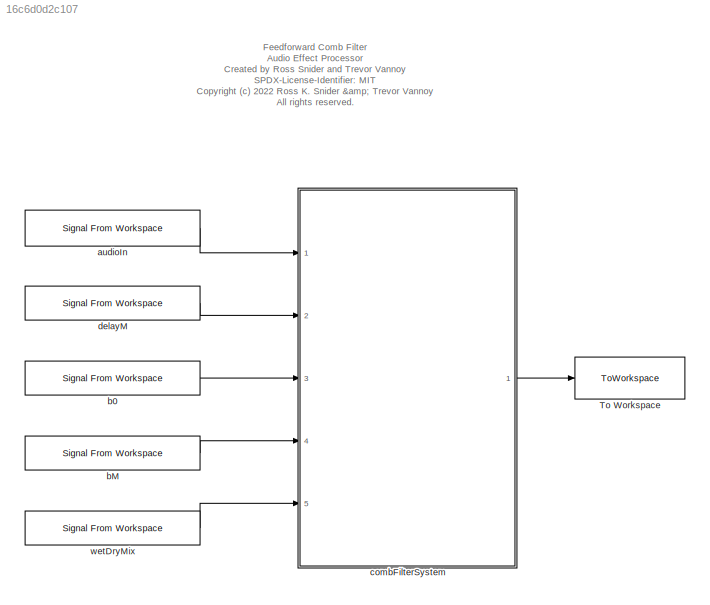
MODEL slx_16c6d0d2c107
KIND model
CONFIG AbsTol = auto
CONFIG EnableMultiTasking = off
CONFIG FixedStep = auto
CONFIG InitFcn = initCallback
CONFIG MaxStep = auto
CONFIG MinStep = auto
CONFIG PostLoadFcn = postLoadCallback
CONFIG RelTol = 1e-3
CONFIG SampleTimeConstraint = Unconstrained
CONFIG SolverName = FixedStepDiscrete
CONFIG StartTime = 0.0
CONFIG StopFcn = stopCallback
CONFIG StopTime = simParams.stopTime
BLOCK [ToWorkspace] To Workspace
  FixptAsFi = on
  MaxDataPoints = inf
  Ports = [1]
  SampleTime = -1
  Save2DSignal = 2-D array (concatenate along first dimension)
  VariableName = audioOut
BLOCK [Reference] audioIn  REF=dspsrcs4/Signal From
Workspace
  Ports = [0, 1]
  SourceBlock = dspsrcs4/Signal From\nWorkspace
  SourceProductBaseCode = DS
  SourceType = Signal From Workspace
BLOCK [Reference] b0  REF=dspsrcs4/Signal From
Workspace
  Ports = [0, 1]
  SourceBlock = dspsrcs4/Signal From\nWorkspace
  SourceProductBaseCode = DS
  SourceType = Signal From Workspace
BLOCK [Reference] bM  REF=dspsrcs4/Signal From
Workspace
  Ports = [0, 1]
  SourceBlock = dspsrcs4/Signal From\nWorkspace
  SourceProductBaseCode = DS
  SourceType = Signal From Workspace
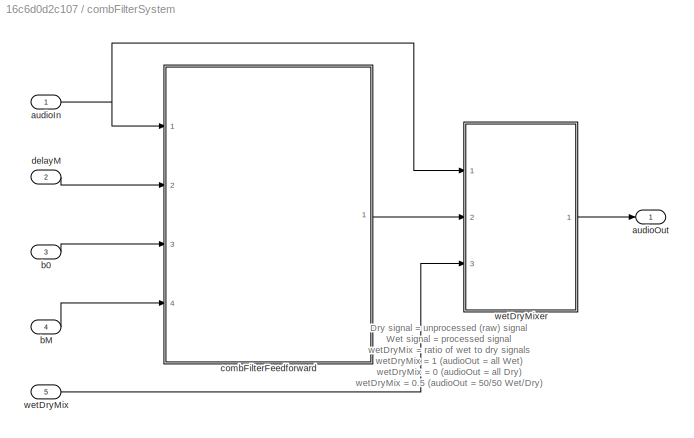
BLOCK [SubSystem] combFilterSystem
  Ports = [5, 1]
  RequestExecContextInheritance = off
  TreatAsAtomicUnit = on
BLOCK [Inport] combFilterSystem/audioIn
BLOCK [Outport] combFilterSystem/audioOut
BLOCK [Inport] combFilterSystem/b0
  Port = 3
BLOCK [Inport] combFilterSystem/bM
  Port = 4
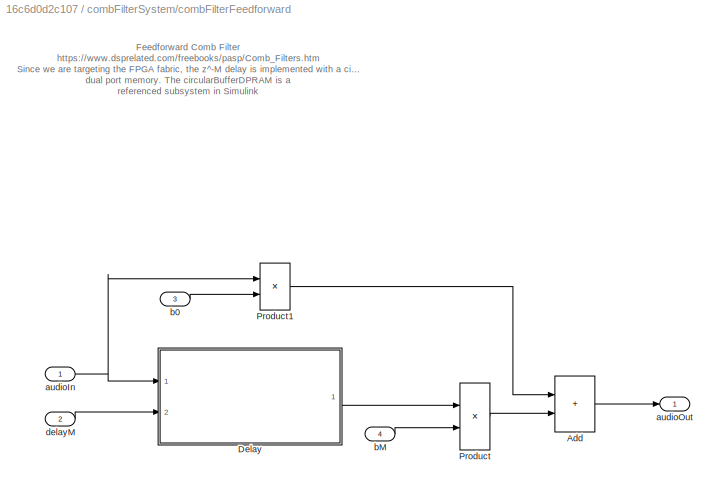
BLOCK [SubSystem] combFilterSystem/combFilterFeedforward
  Ports = [4, 1]
  RequestExecContextInheritance = off
BLOCK [Sum] combFilterSystem/combFilterFeedforward/Add
  IconShape = rectangular
  OutDataTypeStr = fixdt(1, modelParams.audio.wordLength, modelParams.audio.fractionLength)
  Ports = [2, 1]
  SaturateOnIntegerOverflow = on
BLOCK [SubSystem] combFilterSystem/combFilterFeedforward/Delay
  Ports = [2, 1]
  ReferencedSubsystem = circularBufferDPRAM
  RequestExecContextInheritance = off
BLOCK [Product] combFilterSystem/combFilterFeedforward/Product
  NameLocation = top
  OutDataTypeStr = fixdt(1, modelParams.audio.wordLength, modelParams.audio.fractionLength)
  Ports = [2, 1]
BLOCK [Product] combFilterSystem/combFilterFeedforward/Product1
  NameLocation = top
  OutDataTypeStr = fixdt(1, modelParams.audio.wordLength, modelParams.audio.fractionLength)
  Ports = [2, 1]
BLOCK [Inport] combFilterSystem/combFilterFeedforward/audioIn
BLOCK [Outport] combFilterSystem/combFilterFeedforward/audioOut
BLOCK [Inport] combFilterSystem/combFilterFeedforward/b0
  Port = 3
BLOCK [Inport] combFilterSystem/combFilterFeedforward/bM
  Port = 4
BLOCK [Inport] combFilterSystem/combFilterFeedforward/delayM
  Port = 2
BLOCK [Inport] combFilterSystem/delayM
  Port = 2
BLOCK [Inport] combFilterSystem/wetDryMix
  Port = 5
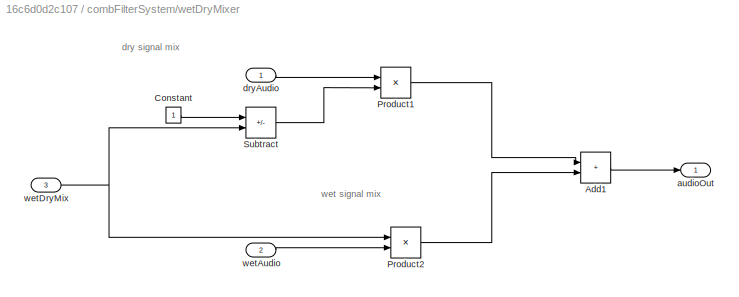
BLOCK [SubSystem] combFilterSystem/wetDryMixer
  Ports = [3, 1]
  RequestExecContextInheritance = off
BLOCK [Sum] combFilterSystem/wetDryMixer/Add1
  IconShape = rectangular
  OutDataTypeStr = fixdt(1, modelParams.audio.wordLength, modelParams.audio.fractionLength)
  Ports = [2, 1]
  SaturateOnIntegerOverflow = on
BLOCK [Constant] combFilterSystem/wetDryMixer/Constant
  OutDataTypeStr = fixdt(0,1,0)
  SampleTime = modelParams.audio.samplePeriod
BLOCK [Product] combFilterSystem/wetDryMixer/Product1
  OutDataTypeStr = fixdt(1, modelParams.audio.wordLength, modelParams.audio.fractionLength)
  Ports = [2, 1]
BLOCK [Product] combFilterSystem/wetDryMixer/Product2
  OutDataTypeStr = fixdt(1, modelParams.audio.wordLength, modelParams.audio.fractionLength)
  Ports = [2, 1]
BLOCK [Sum] combFilterSystem/wetDryMixer/Subtract
  IconShape = rectangular
  Inputs = +-
  OutDataTypeStr = fixdt(1,modelParams.audio.wordLength,modelParams.audio.fractionLength)
  Ports = [2, 1]
BLOCK [Outport] combFilterSystem/wetDryMixer/audioOut
BLOCK [Inport] combFilterSystem/wetDryMixer/dryAudio
BLOCK [Inport] combFilterSystem/wetDryMixer/wetAudio
  Port = 2
BLOCK [Inport] combFilterSystem/wetDryMixer/wetDryMix
  Port = 3
BLOCK [Reference] delayM  REF=dspsrcs4/Signal From
Workspace
  Ports = [0, 1]
  SourceBlock = dspsrcs4/Signal From\nWorkspace
  SourceProductBaseCode = DS
  SourceType = Signal From Workspace
BLOCK [Reference] wetDryMix  REF=dspsrcs4/Signal From
Workspace
  Ports = [0, 1]
  SourceBlock = dspsrcs4/Signal From\nWorkspace
  SourceProductBaseCode = DS
  SourceType = Signal From Workspace
ANNOTATION (root): Feedforward Comb Filter Audio Effect Processor Created by Ross Snider and Trevor Vannoy SPDX-License-Identifier: MIT <copyright redacted>
ANNOTATION combFilterSystem: Dry signal = unprocessed (raw) signal Wet signal = processed signal wetDryMix = ratio of wet to dry signals wetDryMix = 1 (audioOut = all Wet) wetDryMix = 0 (audioOut = all Dry) wetDryMix = 0.5 (audioOut = 50/50 Wet/Dry)
ANNOTATION combFilterSystem/combFilterFeedforward: Feedforward Comb Filter https://www.dsprelated.com/freebooks/pasp/Comb_Filters.htm Since we are targeting the FPGA fabric, the z^-M delay is implemented with a circular buffer that uses a dual port memory. The circularBufferDPRAM is a referenced subsystem in Simulink
ANNOTATION combFilterSystem/wetDryMixer: dry signal mix
ANNOTATION combFilterSystem/wetDryMixer: wet signal mix
LINE audioIn:1 -> combFilterSystem:1
LINE b0:1 -> combFilterSystem:3
LINE bM:1 -> combFilterSystem:4
NET combFilterSystem/audioIn:1 -> combFilterSystem/combFilterFeedforward:1, combFilterSystem/wetDryMixer:1
LINE combFilterSystem/b0:1 -> combFilterSystem/combFilterFeedforward:3
LINE combFilterSystem/bM:1 -> combFilterSystem/combFilterFeedforward:4
LINE combFilterSystem/combFilterFeedforward/Add:1 -> combFilterSystem/combFilterFeedforward/audioOut:1
LINE combFilterSystem/combFilterFeedforward/Delay:1 -> combFilterSystem/combFilterFeedforward/Product:1
LINE combFilterSystem/combFilterFeedforward/Product1:1 -> combFilterSystem/combFilterFeedforward/Add:1
LINE combFilterSystem/combFilterFeedforward/Product:1 -> combFilterSystem/combFilterFeedforward/Add:2
NET combFilterSystem/combFilterFeedforward/audioIn:1 -> combFilterSystem/combFilterFeedforward/Delay:1, combFilterSystem/combFilterFeedforward/Product1:1
LINE combFilterSystem/combFilterFeedforward/b0:1 -> combFilterSystem/combFilterFeedforward/Product1:2
LINE combFilterSystem/combFilterFeedforward/bM:1 -> combFilterSystem/combFilterFeedforward/Product:2
LINE combFilterSystem/combFilterFeedforward/delayM:1 -> combFilterSystem/combFilterFeedforward/Delay:2
LINE combFilterSystem/combFilterFeedforward:1 -> combFilterSystem/wetDryMixer:2
LINE combFilterSystem/delayM:1 -> combFilterSystem/combFilterFeedforward:2
LINE combFilterSystem/wetDryMix:1 -> combFilterSystem/wetDryMixer:3
LINE combFilterSystem/wetDryMixer/Add1:1 -> combFilterSystem/wetDryMixer/audioOut:1
LINE combFilterSystem/wetDryMixer/Constant:1 -> combFilterSystem/wetDryMixer/Subtract:1
LINE combFilterSystem/wetDryMixer/Product1:1 -> combFilterSystem/wetDryMixer/Add1:1
LINE combFilterSystem/wetDryMixer/Product2:1 -> combFilterSystem/wetDryMixer/Add1:2
LINE combFilterSystem/wetDryMixer/Subtract:1 -> combFilterSystem/wetDryMixer/Product1:2
LINE combFilterSystem/wetDryMixer/dryAudio:1 -> combFilterSystem/wetDryMixer/Product1:1
LINE combFilterSystem/wetDryMixer/wetAudio:1 -> combFilterSystem/wetDryMixer/Product2:2
NET combFilterSystem/wetDryMixer/wetDryMix:1 -> combFilterSystem/wetDryMixer/Product2:1, combFilterSystem/wetDryMixer/Subtract:2
LINE combFilterSystem/wetDryMixer:1 -> combFilterSystem/audioOut:1
LINE combFilterSystem:1 -> To Workspace:1
LINE delayM:1 -> combFilterSystem:2
LINE wetDryMix:1 -> combFilterSystem:5
note: NET lines group one-source signal fan-out (src -> all destinations, sorted); 1:1 wires keep LINE
